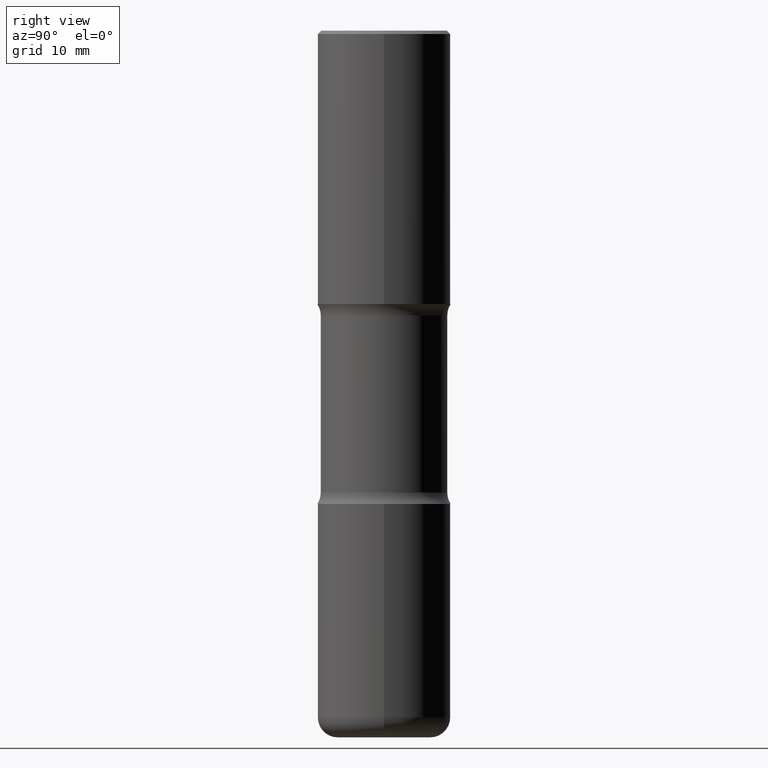
[diagram: clean part render]
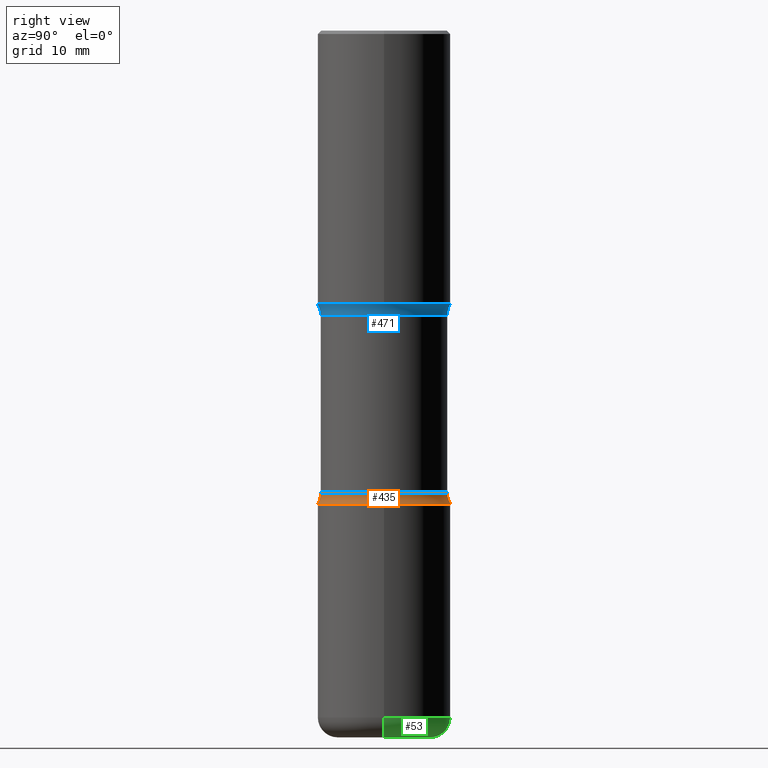
[diagram: same view with three faces highlighted in distinct colors, each labeled with its STEP entity id]
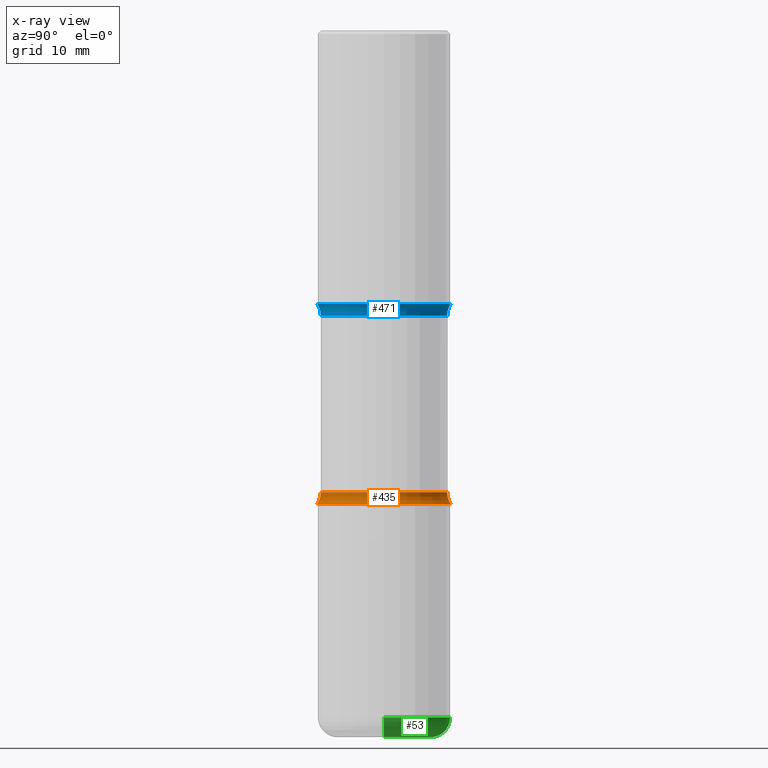
[diagram: x-ray of the same camera — body ghosted, the three highlighted faces saturated]
A machine part, right view with three faces highlighted in distinct colors.
The next image is the same camera in x-ray (body ghosted, the three faces saturated) — at least one of them is partly hidden behind the body in this view.
Their STEP definitions:

[orange] entity #435 — the highlighted toroidal blend (fillet) surface has major radius 12.6619 mm and minor (blend) radius 3.175 mm.
#11 = CIRCLE ( 'NONE', #505, 0.3735000000000000542 ) ;
#23 = CARTESIAN_POINT ( 'NONE',  ( -2.631687031945092870E-15, -0.3735000000000095466, -2.727068069159900521 ) ) ;
#35 = EDGE_CURVE ( 'NONE', #194, #67, #540, .T. ) ;
#58 = DIRECTION ( 'NONE',  ( 2.497382066111305685E-29, -3.417138595909611452E-15, -1.000000000000000000 ) ) ;
#67 = VERTEX_POINT ( 'NONE', #23 ) ;
#92 = AXIS2_PLACEMENT_3D ( 'NONE', #452, #456, #534 ) ;
#94 = DIRECTION ( 'NONE',  ( -1.000000000000000000, 6.982962677686265922E-15, -4.883557194083112340E-29 ) ) ;
#106 = ORIENTED_EDGE ( 'NONE', *, *, #338, .T. ) ;
#110 = EDGE_CURVE ( 'NONE', #207, #194, #402, .T. ) ;
#141 = CARTESIAN_POINT ( 'NONE',  ( 2.608136560115886865E-15, 0.3734999999999905618, -2.727068069159902741 ) ) ;
#144 = TOROIDAL_SURFACE ( 'NONE', #92, 0.4985000000000001097, 0.1249999999999999445 ) ;
#148 = FACE_OUTER_BOUND ( 'NONE', #494, .T. ) ;
#172 = DIRECTION ( 'NONE',  ( 2.497382066111305685E-29, -3.417138595909611452E-15, -1.000000000000000000 ) ) ;
#180 = CARTESIAN_POINT ( 'NONE',  ( 6.665422944839096374E-29, -9.526572387846816848E-15, -2.727068069159901409 ) ) ;
#194 = VERTEX_POINT ( 'NONE', #513 ) ;
#207 = VERTEX_POINT ( 'NONE', #262 ) ;
#237 = DIRECTION ( 'NONE',  ( 6.860497997771528407E-15, 1.000000000000000000, 0.000000000000000000 ) ) ;
#262 = CARTESIAN_POINT ( 'NONE',  ( 2.749192406205152636E-15, 0.3936999999999903910, -2.795200000000001239 ) ) ;
#285 = CIRCLE ( 'NONE', #317, 0.1249999999999999584 ) ;
#288 = DIRECTION ( 'NONE',  ( 1.000000000000000000, -6.860497997771530774E-15, 4.841709315645876741E-29 ) ) ;
#295 = ORIENTED_EDGE ( 'NONE', *, *, #361, .T. ) ;
#303 = CARTESIAN_POINT ( 'NONE',  ( 6.835574407048695164E-29, -9.759388638334361670E-15, -2.795200000000000351 ) ) ;
#317 = AXIS2_PLACEMENT_3D ( 'NONE', #477, #94, #472 ) ;
#328 = VERTEX_POINT ( 'NONE', #141 ) ;
#338 = EDGE_CURVE ( 'NONE', #207, #328, #285, .T. ) ;
#351 = ORIENTED_EDGE ( 'NONE', *, *, #35, .F. ) ;
#361 = EDGE_CURVE ( 'NONE', #328, #67, #11, .T. ) ;
#391 = DIRECTION ( 'NONE',  ( 6.982962677686265922E-15, 1.000000000000000000, -2.925673888797068529E-15 ) ) ;
#402 = CIRCLE ( 'NONE', #515, 0.3937000000000002164 ) ;
#432 = AXIS2_PLACEMENT_3D ( 'NONE', #448, #288, #237 ) ;
#435 = ADVANCED_FACE ( 'NONE', ( #148 ), #144, .F. ) ;
#448 = CARTESIAN_POINT ( 'NONE',  ( -3.419958251889042592E-15, -0.4985000000000096576, -2.727068069159899633 ) ) ;
#452 = CARTESIAN_POINT ( 'NONE',  ( 6.621268914021895076E-29, -9.589803473068410880E-15, -2.727068069159901409 ) ) ;
#456 = DIRECTION ( 'NONE',  ( 2.497382066111305685E-29, -3.417138595909611452E-15, -1.000000000000000000 ) ) ;
#472 = DIRECTION ( 'NONE',  ( -6.982962677686265133E-15, -1.000000000000000000, 0.000000000000000000 ) ) ;
#477 = CARTESIAN_POINT ( 'NONE',  ( 3.481006894826670204E-15, 0.4984999999999905063, -2.727068069159903185 ) ) ;
#494 = EDGE_LOOP ( 'NONE', ( #351, #500, #106, #295 ) ) ;
#500 = ORIENTED_EDGE ( 'NONE', *, *, #110, .F. ) ;
#505 = AXIS2_PLACEMENT_3D ( 'NONE', #180, #58, #391 ) ;
#511 = DIRECTION ( 'NONE',  ( 6.982962677686265922E-15, 1.000000000000000000, -2.775563112689115117E-15 ) ) ;
#513 = CARTESIAN_POINT ( 'NONE',  ( -2.700978061722585382E-15, -0.3937000000000099864, -2.795199999999999019 ) ) ;
#515 = AXIS2_PLACEMENT_3D ( 'NONE', #303, #172, #511 ) ;
#534 = DIRECTION ( 'NONE',  ( 6.982962677686265922E-15, 1.000000000000000000, -3.417138595909611452E-15 ) ) ;
#540 = CIRCLE ( 'NONE', #432, 0.1249999999999999584 ) ;

[blue] entity #471 — the highlighted toroidal blend (fillet) surface has major radius 12.6619 mm and minor (blend) radius 3.175 mm.
#73 = CIRCLE ( 'NONE', #396, 0.3937000000000008271 ) ;
#76 = ORIENTED_EDGE ( 'NONE', *, *, #113, .F. ) ;
#109 = CARTESIAN_POINT ( 'NONE',  ( 2.608136560115862805E-15, 0.3734999999999943365, -1.682231930840100809 ) ) ;
#113 = EDGE_CURVE ( 'NONE', #458, #550, #155, .T. ) ;
#129 = DIRECTION ( 'NONE',  ( 6.982962677686265922E-15, 1.000000000000000000, -3.657092360996333689E-15 ) ) ;
#142 = CARTESIAN_POINT ( 'NONE',  ( 2.749192406205127393E-15, 0.3936999999999950539, -1.614100000000001423 ) ) ;
#155 = CIRCLE ( 'NONE', #274, 0.3735000000000002762 ) ;
#156 = AXIS2_PLACEMENT_3D ( 'NONE', #223, #478, #273 ) ;
#169 = CIRCLE ( 'NONE', #492, 0.1250000000000000278 ) ;
#179 = CARTESIAN_POINT ( 'NONE',  ( -2.700978061722618909E-15, -0.3937000000000064892, -1.614099999999998758 ) ) ;
#182 = CIRCLE ( 'NONE', #156, 0.1250000000000000278 ) ;
#187 = CARTESIAN_POINT ( 'NONE',  ( -3.419958251889070202E-15, -0.4985000000000063825, -1.682231930840097922 ) ) ;
#216 = CARTESIAN_POINT ( 'NONE',  ( -2.631687031945122847E-15, -0.3735000000000062159, -1.682231930840098144 ) ) ;
#223 = CARTESIAN_POINT ( 'NONE',  ( 3.481006894826646538E-15, 0.4984999999999943365, -1.682231930840101253 ) ) ;
#236 = DIRECTION ( 'NONE',  ( 2.497382066111305685E-29, -3.417138595909611452E-15, -1.000000000000000000 ) ) ;
#268 = EDGE_CURVE ( 'NONE', #286, #365, #73, .T. ) ;
#273 = DIRECTION ( 'NONE',  ( -6.982962677686265133E-15, -1.000000000000000000, 0.000000000000000000 ) ) ;
#274 = AXIS2_PLACEMENT_3D ( 'NONE', #464, #378, #129 ) ;
#275 = AXIS2_PLACEMENT_3D ( 'NONE', #320, #236, #532 ) ;
#286 = VERTEX_POINT ( 'NONE', #142 ) ;
#290 = EDGE_CURVE ( 'NONE', #458, #286, #182, .T. ) ;
#311 = DIRECTION ( 'NONE',  ( 2.497382066111305685E-29, -3.417138595909611452E-15, -1.000000000000000000 ) ) ;
#320 = CARTESIAN_POINT ( 'NONE',  ( 4.018463748733707681E-29, -6.010073793817493129E-15, -1.682231930840099476 ) ) ;
#337 = EDGE_LOOP ( 'NONE', ( #343, #76, #450, #498 ) ) ;
#343 = ORIENTED_EDGE ( 'NONE', *, *, #449, .F. ) ;
#358 = FACE_OUTER_BOUND ( 'NONE', #337, .T. ) ;
#365 = VERTEX_POINT ( 'NONE', #179 ) ;
#378 = DIRECTION ( 'NONE',  ( 2.497382066111305685E-29, -3.417138595909611452E-15, -1.000000000000000000 ) ) ;
#396 = AXIS2_PLACEMENT_3D ( 'NONE', #523, #311, #397 ) ;
#397 = DIRECTION ( 'NONE',  ( 6.982962677686265922E-15, 1.000000000000000000, -3.469453890861388868E-15 ) ) ;
#445 = DIRECTION ( 'NONE',  ( 6.860497997771532351E-15, 1.000000000000000000, 0.000000000000000000 ) ) ;
#449 = EDGE_CURVE ( 'NONE', #550, #365, #169, .T. ) ;
#450 = ORIENTED_EDGE ( 'NONE', *, *, #290, .T. ) ;
#458 = VERTEX_POINT ( 'NONE', #109 ) ;
#464 = CARTESIAN_POINT ( 'NONE',  ( 4.056067910974230799E-29, -5.956222493193065901E-15, -1.682231930840099476 ) ) ;
#471 = ADVANCED_FACE ( 'NONE', ( #358 ), #542, .F. ) ;
#478 = DIRECTION ( 'NONE',  ( -1.000000000000000000, 6.982962677686265922E-15, -4.883557194083112340E-29 ) ) ;
#492 = AXIS2_PLACEMENT_3D ( 'NONE', #187, #496, #445 ) ;
#496 = DIRECTION ( 'NONE',  ( 1.000000000000000000, -6.860497997771530774E-15, 4.841709315645876741E-29 ) ) ;
#498 = ORIENTED_EDGE ( 'NONE', *, *, #268, .T. ) ;
#523 = CARTESIAN_POINT ( 'NONE',  ( 3.885916448764630888E-29, -5.723406242705518712E-15, -1.614100000000000090 ) ) ;
#532 = DIRECTION ( 'NONE',  ( 6.982962677686265922E-15, 1.000000000000000000, -3.417138595909611452E-15 ) ) ;
#542 = TOROIDAL_SURFACE ( 'NONE', #275, 0.4985000000000003872, 0.1250000000000000278 ) ;
#550 = VERTEX_POINT ( 'NONE', #216 ) ;

[green] entity #53 — the highlighted toroidal blend (fillet) surface has major radius 7.0002 mm and minor (blend) radius 2.9997 mm.
#3 = ORIENTED_EDGE ( 'NONE', *, *, #560, .T. ) ;
#17 = DIRECTION ( 'NONE',  ( -2.445468806185136597E-29, 3.491481338843145583E-15, 1.000000000000000000 ) ) ;
#38 = AXIS2_PLACEMENT_3D ( 'NONE', #366, #406, #221 ) ;
#39 = EDGE_CURVE ( 'NONE', #87, #410, #226, .T. ) ;
#40 = CARTESIAN_POINT ( 'NONE',  ( 0.2756000000000008998, -1.608281049111318039E-14, -4.055099999999999483 ) ) ;
#51 = DIRECTION ( 'NONE',  ( 1.000000000000000000, -6.982962677686265133E-15, 0.000000000000000000 ) ) ;
#53 = ADVANCED_FACE ( 'NONE', ( #232 ), #62, .T. ) ;
#59 = CARTESIAN_POINT ( 'NONE',  ( -0.2756000000000008998, -1.198664668498034458E-14, -4.173199999999999577 ) ) ;
#62 = TOROIDAL_SURFACE ( 'NONE', #379, 0.2756000000000008998, 0.1180999999999999966 ) ;
#87 = VERTEX_POINT ( 'NONE', #176 ) ;
#99 = AXIS2_PLACEMENT_3D ( 'NONE', #40, #383, #419 ) ;
#117 = VERTEX_POINT ( 'NONE', #163 ) ;
#123 = ORIENTED_EDGE ( 'NONE', *, *, #39, .F. ) ;
#130 = CIRCLE ( 'NONE', #38, 0.1181000000000000383 ) ;
#163 = CARTESIAN_POINT ( 'NONE',  ( 0.2756000000000008998, -1.649515443723055294E-14, -4.173199999999999577 ) ) ;
#166 = EDGE_CURVE ( 'NONE', #117, #87, #474, .T. ) ;
#167 = EDGE_LOOP ( 'NONE', ( #414, #3, #123, #371 ) ) ;
#176 = CARTESIAN_POINT ( 'NONE',  ( 0.3937000000000009381, -1.690749838334792865E-14, -4.055099999999999483 ) ) ;
#199 = DIRECTION ( 'NONE',  ( 1.000000000000000000, -6.982962677686266711E-15, 4.883557194083112340E-29 ) ) ;
#221 = DIRECTION ( 'NONE',  ( -1.000000000000000000, 7.105427357601001859E-15, 0.000000000000000000 ) ) ;
#226 = CIRCLE ( 'NONE', #359, 0.3937000000000008271 ) ;
#232 = FACE_OUTER_BOUND ( 'NONE', #167, .T. ) ;
#292 = CIRCLE ( 'NONE', #475, 0.2756000000000008998 ) ;
#306 = EDGE_CURVE ( 'NONE', #117, #506, #292, .T. ) ;
#309 = CARTESIAN_POINT ( 'NONE',  ( 1.020543042197181255E-28, -1.457064992326021168E-14, -4.173199999999999577 ) ) ;
#359 = AXIS2_PLACEMENT_3D ( 'NONE', #364, #453, #457 ) ;
#364 = CARTESIAN_POINT ( 'NONE',  ( 9.916620555961346429E-29, -1.415830597714283912E-14, -4.055099999999999483 ) ) ;
#366 = CARTESIAN_POINT ( 'NONE',  ( -0.2756000000000008998, -1.220005019738799465E-14, -4.055099999999999483 ) ) ;
#371 = ORIENTED_EDGE ( 'NONE', *, *, #166, .F. ) ;
#379 = AXIS2_PLACEMENT_3D ( 'NONE', #493, #17, #199 ) ;
#383 = DIRECTION ( 'NONE',  ( -6.982962677686266711E-15, -1.000000000000000000, 3.491481338843145583E-15 ) ) ;
#406 = DIRECTION ( 'NONE',  ( 7.105427357601001859E-15, 1.000000000000000000, -3.491481338843145583E-15 ) ) ;
#410 = VERTEX_POINT ( 'NONE', #437 ) ;
#414 = ORIENTED_EDGE ( 'NONE', *, *, #306, .T. ) ;
#419 = DIRECTION ( 'NONE',  ( 1.000000000000000000, -6.982962677686270655E-15, 0.000000000000000000 ) ) ;
#434 = DIRECTION ( 'NONE',  ( -2.445468806185136597E-29, 3.491481338843145583E-15, 1.000000000000000000 ) ) ;
#437 = CARTESIAN_POINT ( 'NONE',  ( -0.3937000000000009381, -1.136089922645531724E-14, -4.055099999999999483 ) ) ;
#453 = DIRECTION ( 'NONE',  ( -2.445468806185136597E-29, 3.491481338843145583E-15, 1.000000000000000000 ) ) ;
#457 = DIRECTION ( 'NONE',  ( 1.000000000000000000, -6.982962677686268288E-15, 0.000000000000000000 ) ) ;
#474 = CIRCLE ( 'NONE', #99, 0.1181000000000000383 ) ;
#475 = AXIS2_PLACEMENT_3D ( 'NONE', #309, #434, #51 ) ;
#493 = CARTESIAN_POINT ( 'NONE',  ( 9.916620555961346429E-29, -1.415830597714283912E-14, -4.055099999999999483 ) ) ;
#506 = VERTEX_POINT ( 'NONE', #59 ) ;
#560 = EDGE_CURVE ( 'NONE', #506, #410, #130, .T. ) ;